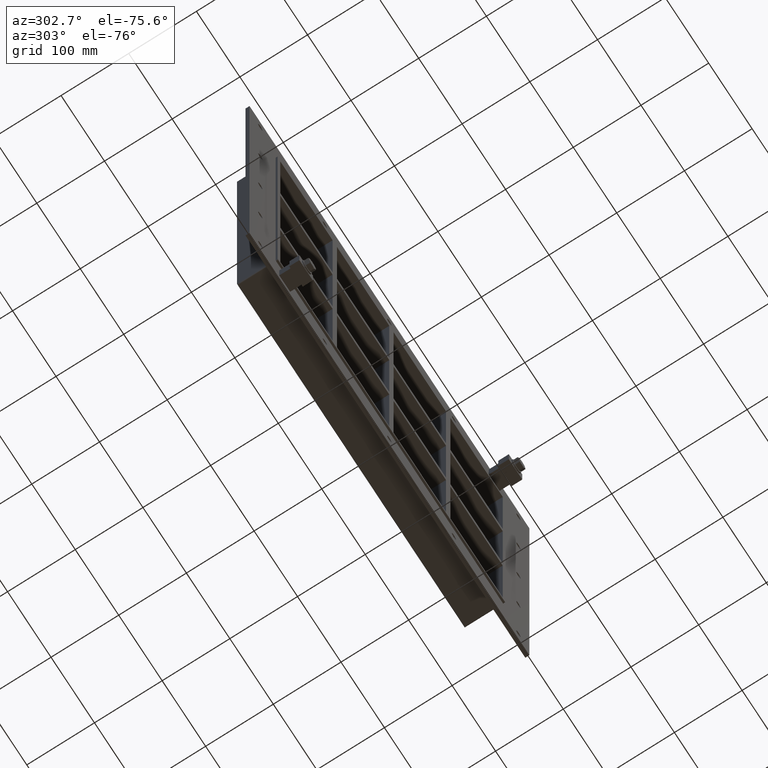
[diagram: clean part render]
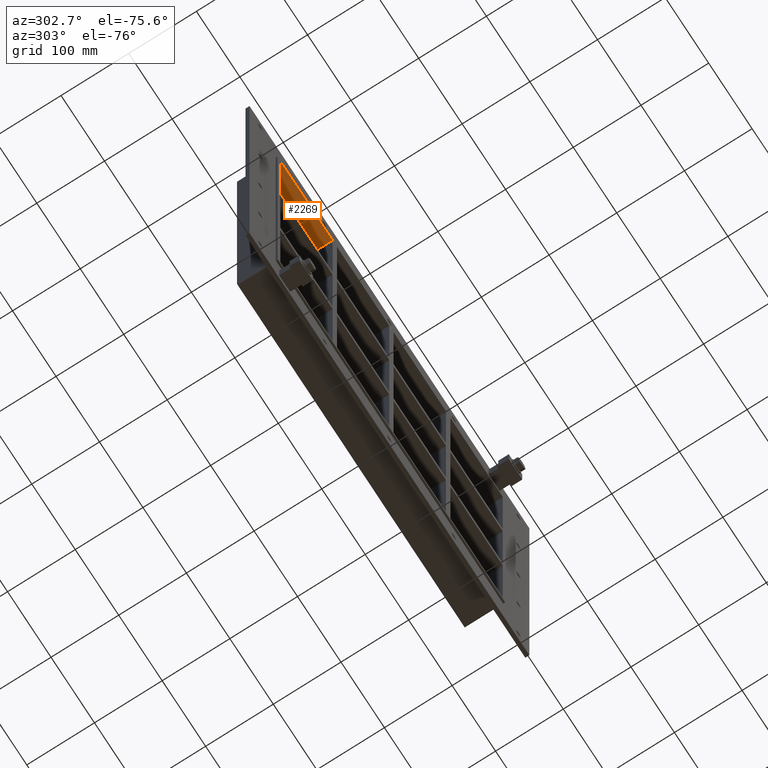
[diagram: same view with one face highlighted and labeled with its STEP entity id]
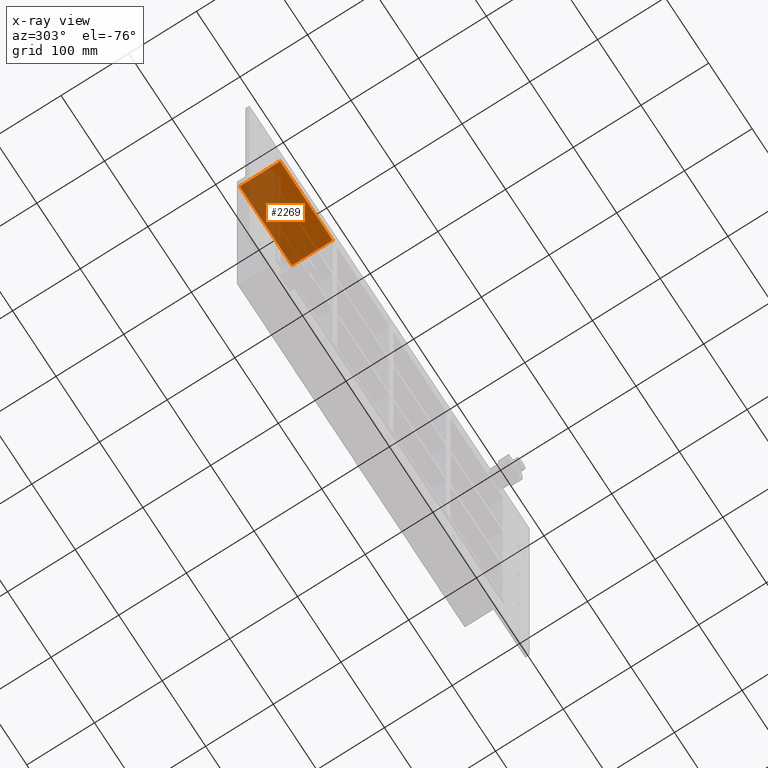
[diagram: x-ray of the same camera — body ghosted, the highlighted face saturated]
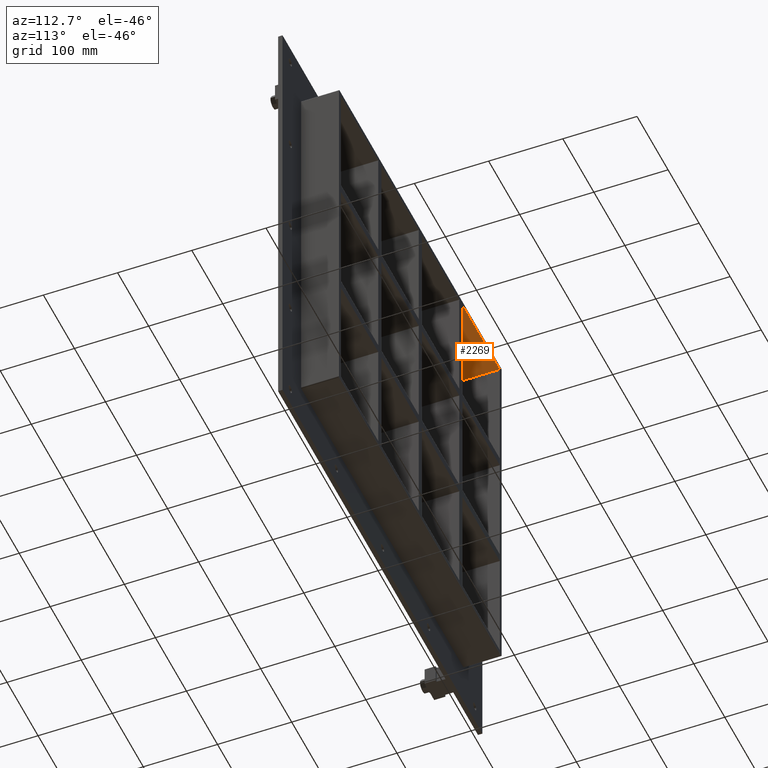
[diagram: same view with one face highlighted and labeled with its STEP entity id]
A machine part, auxiliary view. The second image highlights one B-rep face of the part: STEP entity #2269.
The next image is the same camera in x-ray: the body ghosted, the highlighted face saturated — about 66% of this face is hidden behind the body in this view.
A second angle (auxiliary view) of the same face is appended — the face is thin or edge-on in the first view.
In plain terms, the highlighted planar face has unit normal (0, 0, 1).
Its self-contained STEP definition (entity closure, byte-faithful):
#842=CARTESIAN_POINT('',(-256.0,57.0,251.25000000000003));
#843=VERTEX_POINT('',#842);
#850=CARTESIAN_POINT('',(-256.0,-3.0,251.25000000000003));
#851=VERTEX_POINT('',#850);
#852=CARTESIAN_POINT('',(-256.00000000000006,-3.0,251.25000000000003));
#853=DIRECTION('',(0.0,1.0,0.0));
#854=VECTOR('',#853,60.0);
#855=LINE('',#852,#854);
#856=EDGE_CURVE('',#851,#843,#855,.T.);
#1059=CARTESIAN_POINT('',(-135.50000000000034,-3.0,251.25000000000003));
#1060=VERTEX_POINT('',#1059);
#1067=CARTESIAN_POINT('',(-135.50000000000034,57.0,251.25000000000003));
#1068=VERTEX_POINT('',#1067);
#1069=CARTESIAN_POINT('',(-135.50000000000034,57.000000000000007,251.25000000000003));
#1070=DIRECTION('',(0.0,-1.0,0.0));
#1071=VECTOR('',#1070,60.000000000000007);
#1072=LINE('',#1069,#1071);
#1073=EDGE_CURVE('',#1068,#1060,#1072,.T.);
#1426=CARTESIAN_POINT('',(-135.50000000000034,57.0,251.25000000000003));
#1427=DIRECTION('',(-1.0,0.0,0.0));
#1428=VECTOR('',#1427,120.49999999999966);
#1429=LINE('',#1426,#1428);
#1430=EDGE_CURVE('',#1068,#843,#1429,.T.);
#1831=CARTESIAN_POINT('',(-256.0,-3.0,251.25000000000003));
#1832=DIRECTION('',(1.0,0.0,0.0));
#1833=VECTOR('',#1832,120.49999999999966);
#1834=LINE('',#1831,#1833);
#1835=EDGE_CURVE('',#851,#1060,#1834,.T.);
#2258=CARTESIAN_POINT('',(-256.00000000000006,0.0,251.25000000000003));
#2259=DIRECTION('',(0.0,0.0,1.0));
#2260=DIRECTION('',(1.0,0.0,0.0));
#2261=AXIS2_PLACEMENT_3D('',#2258,#2259,#2260);
#2262=PLANE('',#2261);
#2263=ORIENTED_EDGE('',*,*,#1073,.T.);
#2264=ORIENTED_EDGE('',*,*,#1835,.F.);
#2265=ORIENTED_EDGE('',*,*,#856,.T.);
#2266=ORIENTED_EDGE('',*,*,#1430,.F.);
#2267=EDGE_LOOP('',(#2263,#2264,#2265,#2266));
#2268=FACE_OUTER_BOUND('',#2267,.T.);
#2269=ADVANCED_FACE('',(#2268),#2262,.F.);